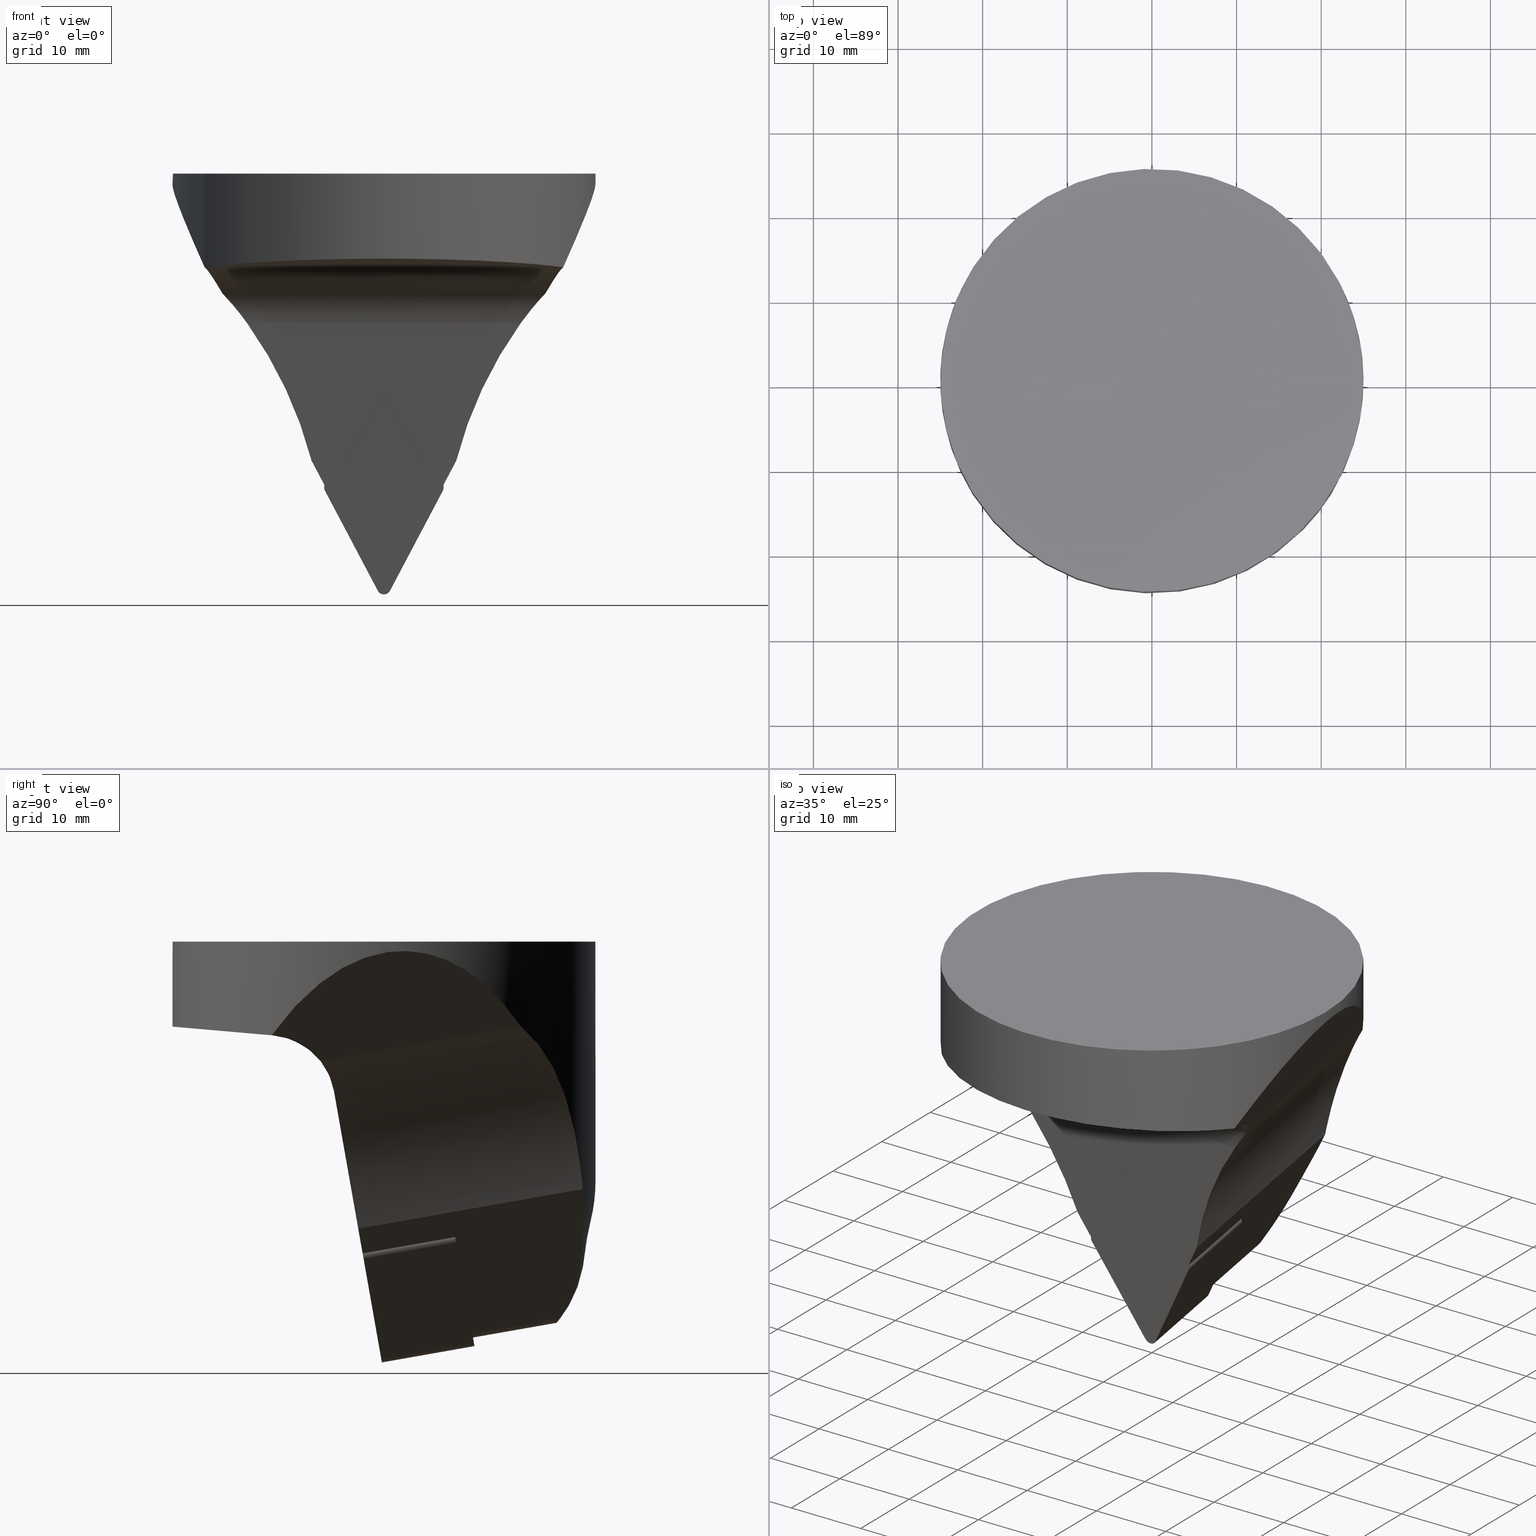
[diagram: canonical four-view strip — front | top / right | iso, engineering-drawing reading convention]
A machine part, canonical four-view strip (front | top / right | iso — engineering-drawing reading convention). The complete STEP part file that produces these views, byte-faithful:
ISO-10303-21;
HEADER;
FILE_DESCRIPTION((''),'1');
FILE_NAME('//Big_tech03/bigt/Translate/11_3D_Field/02_Step_Field/91_\X2\65CB524A30C430FC30EB\X0\/S\X2\30AB30FC30C830EA30C330B8\X0\/S50-DDHNN-00050-15.stp','2012-12-24T06:25:39',(''),(''),'Spatial Interop R18','Kubotek KeyCreator V8.5.1 (14335)',' ');
FILE_SCHEMA(('CONFIG_CONTROL_DESIGN'));
ENDSEC;
DATA;
#1=DESIGN_CONTEXT('',#27,'design');
#2=APPLICATION_PROTOCOL_DEFINITION('INTERNATIONAL STANDARD','config_control_design',1994,#27);
#3=PRODUCT_CATEGORY_RELATIONSHIP('NONE','NONE',#28,#29);
#4=DATE_AND_TIME(#30,#31);
#5=DATE_TIME_ROLE('creation_date');
#6=DATE_TIME_ROLE('classification_date');
#7=PERSON_AND_ORGANIZATION_ROLE('creator');
#8=PERSON_AND_ORGANIZATION_ROLE('design_supplier');
#9=PERSON_AND_ORGANIZATION_ROLE('classification_officer');
#10=PERSON_AND_ORGANIZATION_ROLE('design_owner');
#11=APPROVAL_PERSON_ORGANIZATION(#32,#33,#34);
#12=APPROVAL_DATE_TIME(#4,#33);
#13=CC_DESIGN_APPROVAL(#33,(#35,#36,#37));
#14=CC_DESIGN_DATE_AND_TIME_ASSIGNMENT(#4,#5,(#37));
#15=CC_DESIGN_DATE_AND_TIME_ASSIGNMENT(#4,#6,(#35));
#16=CC_DESIGN_PERSON_AND_ORGANIZATION_ASSIGNMENT(#32,#10,(#38));
#17=CC_DESIGN_PERSON_AND_ORGANIZATION_ASSIGNMENT(#32,#7,(#37));
#18=CC_DESIGN_PERSON_AND_ORGANIZATION_ASSIGNMENT(#32,#7,(#36));
#19=CC_DESIGN_PERSON_AND_ORGANIZATION_ASSIGNMENT(#32,#8,(#36));
#20=CC_DESIGN_SECURITY_CLASSIFICATION(#35,(#36));
#21=CC_DESIGN_PERSON_AND_ORGANIZATION_ASSIGNMENT(#32,#9,(#35));
#22=SHAPE_DEFINITION_REPRESENTATION(#39,#40);
#23= (GEOMETRIC_REPRESENTATION_CONTEXT(3)GLOBAL_UNCERTAINTY_ASSIGNED_CONTEXT((#43))GLOBAL_UNIT_ASSIGNED_CONTEXT((#45,#46,#47))REPRESENTATION_CONTEXT('NONE','WORKSPACE'));
#27=APPLICATION_CONTEXT('CONFIGURATION CONTROLLED 3D DESIGNS OF MECHANICAL PARTS AND ASSEMBLIES');
#28=PRODUCT_CATEGORY('part','NONE');
#29=PRODUCT_RELATED_PRODUCT_CATEGORY('detail',' ',(#38));
#30=CALENDAR_DATE(2012,24,11);
#31=LOCAL_TIME(15,25,39.0,#49);
#32=PERSON_AND_ORGANIZATION(#50,#51);
#33=APPROVAL(#52,'SOLID MODEL');
#34=APPROVAL_ROLE('APPROVED');
#35=SECURITY_CLASSIFICATION('','',#53);
#36=PRODUCT_DEFINITION_FORMATION_WITH_SPECIFIED_SOURCE(' ','NONE',#38,.NOT_KNOWN.);
#37=PRODUCT_DEFINITION('NONE','NONE',#36,#1);
#38=PRODUCT('1','1','PART-1-DESC',(#54));
#39=PRODUCT_DEFINITION_SHAPE('NONE','NONE',#37);
#40=ADVANCED_BREP_SHAPE_REPRESENTATION('1',(#55,#56),#23);
#43=UNCERTAINTY_MEASURE_WITH_UNIT(LENGTH_MEASURE(1.0E-006),#45,'','');
#45= (CONVERSION_BASED_UNIT('MILLIMETRE',#59)LENGTH_UNIT()NAMED_UNIT(#62));
#46= (NAMED_UNIT(#64)PLANE_ANGLE_UNIT()SI_UNIT($,.RADIAN.));
#47= (NAMED_UNIT(#64)SOLID_ANGLE_UNIT()SI_UNIT($,.STERADIAN.));
#49=COORDINATED_UNIVERSAL_TIME_OFFSET(9,0,.AHEAD.);
#50=PERSON('','UNSPECIFIED',$,$,$,$);
#51=ORGANIZATION('UNSPECIFIED','UNSPECIFIED','UNSPECIFIED');
#52=APPROVAL_STATUS('approved');
#53=SECURITY_CLASSIFICATION_LEVEL('unclassified');
#54=MECHANICAL_CONTEXT('',#27,'mechanical');
#55=MANIFOLD_SOLID_BREP('1',#70);
#56=AXIS2_PLACEMENT_3D('',#71,#72,#73);
#59=LENGTH_MEASURE_WITH_UNIT(LENGTH_MEASURE(1.0),#74);
#62=DIMENSIONAL_EXPONENTS(1.0,0.0,0.0,0.0,0.0,0.0,0.0);
#64=DIMENSIONAL_EXPONENTS(0.0,0.0,0.0,0.0,0.0,0.0,0.0);
#70=CLOSED_SHELL('',(#75,#76,#77,#78,#79,#80,#81,#82,#83,#84,#85,#86,#87,#88,#89,#90,#91,#92,#93,#94,#95,#96,#97,#98,#99,#100,#101,#102,#103));
#71=CARTESIAN_POINT('',(0.0,0.0,0.0));
#72=DIRECTION('',(0.0,0.0,1.0));
#73=DIRECTION('',(1.0,0.0,0.0));
#74= (NAMED_UNIT(#62)LENGTH_UNIT()SI_UNIT(.MILLI.,.METRE.));
#75=ADVANCED_FACE('',(#105),#106,.T.);
#76=ADVANCED_FACE('',(#107),#108,.T.);
#77=ADVANCED_FACE('',(#109),#110,.T.);
#78=ADVANCED_FACE('',(#111),#112,.T.);
#79=ADVANCED_FACE('',(#113),#114,.T.);
#80=ADVANCED_FACE('',(#115),#116,.T.);
#81=ADVANCED_FACE('',(#117),#118,.F.);
#82=ADVANCED_FACE('',(#119),#120,.F.);
#83=ADVANCED_FACE('',(#121),#122,.F.);
#84=ADVANCED_FACE('',(#123),#124,.F.);
#85=ADVANCED_FACE('',(#125),#126,.F.);
#86=ADVANCED_FACE('',(#127),#128,.F.);
#87=ADVANCED_FACE('',(#129),#130,.F.);
#88=ADVANCED_FACE('',(#131),#132,.T.);
#89=ADVANCED_FACE('',(#133),#134,.T.);
#90=ADVANCED_FACE('',(#135),#136,.F.);
#91=ADVANCED_FACE('',(#137),#138,.F.);
#92=ADVANCED_FACE('',(#139),#140,.T.);
#93=ADVANCED_FACE('',(#141,#142),#143,.T.);
#94=ADVANCED_FACE('',(#144),#145,.F.);
#95=ADVANCED_FACE('',(#146),#147,.T.);
#96=ADVANCED_FACE('',(#148),#149,.F.);
#97=ADVANCED_FACE('',(#150),#151,.F.);
#98=ADVANCED_FACE('',(#152),#153,.T.);
#99=ADVANCED_FACE('',(#154),#155,.F.);
#100=ADVANCED_FACE('',(#156),#157,.F.);
#101=ADVANCED_FACE('',(#158),#159,.T.);
#102=ADVANCED_FACE('',(#160),#161,.T.);
#103=ADVANCED_FACE('',(#162),#163,.F.);
#105=FACE_OUTER_BOUND('',#164,.T.);
#106=CYLINDRICAL_SURFACE('',#165,0.799999999999142);
#107=FACE_OUTER_BOUND('',#166,.T.);
#108=PLANE('',#167);
#109=FACE_OUTER_BOUND('',#168,.T.);
#110=CYLINDRICAL_SURFACE('',#169,0.8);
#111=FACE_OUTER_BOUND('',#170,.T.);
#112=PLANE('',#171);
#113=FACE_OUTER_BOUND('',#172,.T.);
#114=CYLINDRICAL_SURFACE('',#173,0.8);
#115=FACE_OUTER_BOUND('',#174,.T.);
#116=PLANE('',#175);
#117=FACE_OUTER_BOUND('',#176,.T.);
#118=PLANE('',#177);
#119=FACE_OUTER_BOUND('',#178,.T.);
#120=CYLINDRICAL_SURFACE('',#179,0.799999999999142);
#121=FACE_OUTER_BOUND('',#180,.T.);
#122=PLANE('',#181);
#123=FACE_OUTER_BOUND('',#182,.T.);
#124=CYLINDRICAL_SURFACE('',#183,0.799999998551582);
#125=FACE_OUTER_BOUND('',#184,.T.);
#126=PLANE('',#185);
#127=FACE_OUTER_BOUND('',#186,.T.);
#128=CYLINDRICAL_SURFACE('',#187,0.8);
#129=FACE_OUTER_BOUND('',#188,.T.);
#130=PLANE('',#189);
#131=FACE_OUTER_BOUND('',#190,.T.);
#132=CYLINDRICAL_SURFACE('',#191,1.2);
#133=FACE_OUTER_BOUND('',#192,.T.);
#134=TOROIDAL_SURFACE('',#193,9.72606554933885,13.9999999999999);
#135=FACE_OUTER_BOUND('',#194,.T.);
#136=PLANE('',#195);
#137=FACE_OUTER_BOUND('',#196,.T.);
#138=PLANE('',#197);
#139=FACE_OUTER_BOUND('',#198,.T.);
#140=TOROIDAL_SURFACE('',#199,9.72606554941745,13.9999999999999);
#141=FACE_BOUND('',#200,.T.);
#142=FACE_BOUND('',#201,.T.);
#143=CYLINDRICAL_SURFACE('',#202,25.0);
#144=FACE_OUTER_BOUND('',#203,.T.);
#145=CYLINDRICAL_SURFACE('',#204,8.0);
#146=FACE_OUTER_BOUND('',#205,.T.);
#147=TOROIDAL_SURFACE('',#206,4.99999999998933,19.9999999999995);
#148=FACE_OUTER_BOUND('',#207,.T.);
#149=CYLINDRICAL_SURFACE('',#208,50.0);
#150=FACE_OUTER_BOUND('',#209,.T.);
#151=PLANE('',#210);
#152=FACE_OUTER_BOUND('',#211,.T.);
#153=TOROIDAL_SURFACE('',#212,4.99999999998796,20.0);
#154=FACE_OUTER_BOUND('',#213,.T.);
#155=CYLINDRICAL_SURFACE('',#214,50.0);
#156=FACE_OUTER_BOUND('',#215,.T.);
#157=PLANE('',#216);
#158=FACE_OUTER_BOUND('',#217,.T.);
#159=CONICAL_SURFACE('',#218,23.2367301929155,0.174532924999441);
#160=FACE_OUTER_BOUND('',#219,.T.);
#161=PLANE('',#220);
#162=FACE_OUTER_BOUND('',#221,.T.);
#163=PLANE('',#222);
#164=EDGE_LOOP('',(#223,#224,#225,#226));
#165=AXIS2_PLACEMENT_3D('',#227,#228,#229);
#166=EDGE_LOOP('',(#230,#231,#232,#233,#234,#235,#236,#237));
#167=AXIS2_PLACEMENT_3D('',#238,#239,#240);
#168=EDGE_LOOP('',(#241,#242,#243,#244));
#169=AXIS2_PLACEMENT_3D('',#245,#246,#247);
#170=EDGE_LOOP('',(#248,#249,#250,#251));
#171=AXIS2_PLACEMENT_3D('',#252,#253,#254);
#172=EDGE_LOOP('',(#255,#256,#257,#258));
#173=AXIS2_PLACEMENT_3D('',#259,#260,#261);
#174=EDGE_LOOP('',(#262,#263,#264,#265));
#175=AXIS2_PLACEMENT_3D('',#266,#267,#268);
#176=EDGE_LOOP('',(#269,#270,#271,#272,#273,#274,#275,#276,#277,#278));
#177=AXIS2_PLACEMENT_3D('',#279,#280,#281);
#178=EDGE_LOOP('',(#282,#283,#284,#285));
#179=AXIS2_PLACEMENT_3D('',#286,#287,#288);
#180=EDGE_LOOP('',(#289,#290,#291,#292));
#181=AXIS2_PLACEMENT_3D('',#293,#294,#295);
#182=EDGE_LOOP('',(#296,#297,#298,#299));
#183=AXIS2_PLACEMENT_3D('',#300,#301,#302);
#184=EDGE_LOOP('',(#303,#304,#305,#306));
#185=AXIS2_PLACEMENT_3D('',#307,#308,#309);
#186=EDGE_LOOP('',(#310,#311,#312,#313));
#187=AXIS2_PLACEMENT_3D('',#314,#315,#316);
#188=EDGE_LOOP('',(#317,#318,#319,#320,#321,#322,#323,#324,#325));
#189=AXIS2_PLACEMENT_3D('',#326,#327,#328);
#190=EDGE_LOOP('',(#329,#330,#331,#332,#333));
#191=AXIS2_PLACEMENT_3D('',#334,#335,#336);
#192=EDGE_LOOP('',(#337,#338,#339,#340));
#193=AXIS2_PLACEMENT_3D('',#341,#342,#343);
#194=EDGE_LOOP('',(#344,#345,#346,#347,#348,#349,#350,#351,#352));
#195=AXIS2_PLACEMENT_3D('',#353,#354,#355);
#196=EDGE_LOOP('',(#356,#357,#358,#359,#360,#361,#362,#363,#364,#365));
#197=AXIS2_PLACEMENT_3D('',#366,#367,#368);
#198=EDGE_LOOP('',(#369,#370,#371,#372));
#199=AXIS2_PLACEMENT_3D('',#373,#374,#375);
#200=EDGE_LOOP('',(#376));
#201=EDGE_LOOP('',(#377,#378,#379,#380,#381,#382,#383));
#202=AXIS2_PLACEMENT_3D('',#384,#385,#386);
#203=EDGE_LOOP('',(#387,#388,#389,#390,#391,#392));
#204=AXIS2_PLACEMENT_3D('',#393,#394,#395);
#205=EDGE_LOOP('',(#396,#397,#398,#399,#400));
#206=AXIS2_PLACEMENT_3D('',#401,#402,#403);
#207=EDGE_LOOP('',(#404,#405,#406,#407,#408,#409));
#208=AXIS2_PLACEMENT_3D('',#410,#411,#412);
#209=EDGE_LOOP('',(#413,#414,#415,#416));
#210=AXIS2_PLACEMENT_3D('',#417,#418,#419);
#211=EDGE_LOOP('',(#420,#421,#422,#423,#424));
#212=AXIS2_PLACEMENT_3D('',#425,#426,#427);
#213=EDGE_LOOP('',(#428,#429,#430,#431,#432,#433));
#214=AXIS2_PLACEMENT_3D('',#434,#435,#436);
#215=EDGE_LOOP('',(#437,#438,#439,#440));
#216=AXIS2_PLACEMENT_3D('',#441,#442,#443);
#217=EDGE_LOOP('',(#444,#445,#446,#447,#448,#449));
#218=AXIS2_PLACEMENT_3D('',#450,#451,#452);
#219=EDGE_LOOP('',(#453));
#220=AXIS2_PLACEMENT_3D('',#454,#455,#456);
#221=EDGE_LOOP('',(#457,#458,#459,#460));
#222=AXIS2_PLACEMENT_3D('',#461,#462,#463);
#223=ORIENTED_EDGE('',*,*,#464,.F.);
#224=ORIENTED_EDGE('',*,*,#465,.T.);
#225=ORIENTED_EDGE('',*,*,#466,.T.);
#226=ORIENTED_EDGE('',*,*,#467,.T.);
#227=CARTESIAN_POINT('',(-6.25696980563383,8.47194245402044,-35.1824966051004));
#228=DIRECTION('',(1.08420217248783E-017,0.984807753012208,0.173648177666931));
#229=DIRECTION('',(-0.887007221716578,-0.0801830099104767,0.454740446347512));
#230=ORIENTED_EDGE('',*,*,#468,.F.);
#231=ORIENTED_EDGE('',*,*,#469,.F.);
#232=ORIENTED_EDGE('',*,*,#470,.F.);
#233=ORIENTED_EDGE('',*,*,#471,.F.);
#234=ORIENTED_EDGE('',*,*,#472,.F.);
#235=ORIENTED_EDGE('',*,*,#473,.F.);
#236=ORIENTED_EDGE('',*,*,#474,.F.);
#237=ORIENTED_EDGE('',*,*,#465,.F.);
#238=CARTESIAN_POINT('',(-2.26626051362452E-005,9.55508718525911,-41.325315627389));
#239=DIRECTION('',(9.63750721919001E-017,0.984807753012208,0.173648177666931));
#240=DIRECTION('',(2.13995648294718E-033,-0.173648177666931,0.984807753012208));
#241=ORIENTED_EDGE('',*,*,#475,.F.);
#242=ORIENTED_EDGE('',*,*,#476,.T.);
#243=ORIENTED_EDGE('',*,*,#477,.F.);
#244=ORIENTED_EDGE('',*,*,#471,.T.);
#245=CARTESIAN_POINT('',(6.25696980419981,8.47195944969583,-35.1825929923652));
#246=DIRECTION('',(2.16840434497101E-017,0.984807753012208,0.173648177666931));
#247=DIRECTION('',(0.887007221716535,0.080183009910491,-0.454740446347593));
#248=ORIENTED_EDGE('',*,*,#478,.T.);
#249=ORIENTED_EDGE('',*,*,#479,.F.);
#250=ORIENTED_EDGE('',*,*,#472,.T.);
#251=ORIENTED_EDGE('',*,*,#477,.T.);
#252=CARTESIAN_POINT('',(6.96657558157304,8.53610585762422,-35.5463853494433));
#253=DIRECTION('',(0.887007221716534,0.080183009910491,-0.454740446347594));
#254=DIRECTION('',(-0.456209368079499,0.0,-0.88987246978233));
#255=ORIENTED_EDGE('',*,*,#480,.T.);
#256=ORIENTED_EDGE('',*,*,#481,.F.);
#257=ORIENTED_EDGE('',*,*,#473,.T.);
#258=ORIENTED_EDGE('',*,*,#479,.T.);
#259=CARTESIAN_POINT('',(-9.40080069376711E-005,10.559119940347,-47.0194683376198));
#260=DIRECTION('',(2.16840434497101E-017,0.984807753012208,0.173648177666931));
#261=DIRECTION('',(-0.88701444458565,0.080180600541596,-0.454726782137582));
#262=ORIENTED_EDGE('',*,*,#482,.T.);
#263=ORIENTED_EDGE('',*,*,#466,.F.);
#264=ORIENTED_EDGE('',*,*,#474,.T.);
#265=ORIENTED_EDGE('',*,*,#481,.T.);
#266=CARTESIAN_POINT('',(-0.709705563675459,10.6232644207803,-47.3832497633299));
#267=DIRECTION('',(-0.887014444585653,0.0801806005415949,-0.454726782137576));
#268=DIRECTION('',(-0.45619557102919,0.0,0.889879542956996));
#269=ORIENTED_EDGE('',*,*,#467,.F.);
#270=ORIENTED_EDGE('',*,*,#482,.F.);
#271=ORIENTED_EDGE('',*,*,#480,.F.);
#272=ORIENTED_EDGE('',*,*,#478,.F.);
#273=ORIENTED_EDGE('',*,*,#476,.F.);
#274=ORIENTED_EDGE('',*,*,#483,.F.);
#275=ORIENTED_EDGE('',*,*,#484,.F.);
#276=ORIENTED_EDGE('',*,*,#485,.F.);
#277=ORIENTED_EDGE('',*,*,#486,.F.);
#278=ORIENTED_EDGE('',*,*,#487,.F.);
#279=CARTESIAN_POINT('',(-2.26626051366615E-005,-1.38612695070652,-43.2545468812686));
#280=DIRECTION('',(1.02117280393724E-016,0.984807753012208,0.173648177666931));
#281=DIRECTION('',(-8.36085562892542E-035,-0.173648177666931,0.984807753012208));
#282=ORIENTED_EDGE('',*,*,#487,.T.);
#283=ORIENTED_EDGE('',*,*,#488,.F.);
#284=ORIENTED_EDGE('',*,*,#489,.F.);
#285=ORIENTED_EDGE('',*,*,#490,.F.);
#286=CARTESIAN_POINT('',(-6.25696980563383,-2.56775245724641,-37.1290926767467));
#287=DIRECTION('',(-1.08420217248783E-017,0.984807753012208,0.173648177666931));
#288=DIRECTION('',(-0.887014444585653,0.0801806005415949,-0.454726782137576));
#289=ORIENTED_EDGE('',*,*,#486,.T.);
#290=ORIENTED_EDGE('',*,*,#491,.F.);
#291=ORIENTED_EDGE('',*,*,#492,.F.);
#292=ORIENTED_EDGE('',*,*,#488,.T.);
#293=CARTESIAN_POINT('',(-6.96657558300633,-2.63189886517472,-36.7653003196691));
#294=DIRECTION('',(-0.887007221617867,-0.0801830099434035,0.454740446534249));
#295=DIRECTION('',(0.456209368267969,0.0,0.889872469685708));
#296=ORIENTED_EDGE('',*,*,#485,.T.);
#297=ORIENTED_EDGE('',*,*,#493,.F.);
#298=ORIENTED_EDGE('',*,*,#494,.F.);
#299=ORIENTED_EDGE('',*,*,#491,.T.);
#300=CARTESIAN_POINT('',(9.40082061119755E-005,-4.6549129478979,-25.2922173314905));
#301=DIRECTION('',(-1.08420217641145E-017,0.984807753012208,0.173648177666931));
#302=DIRECTION('',(-0.887007221716489,-0.0801830099105062,0.454740446347679));
#303=ORIENTED_EDGE('',*,*,#484,.T.);
#304=ORIENTED_EDGE('',*,*,#495,.F.);
#305=ORIENTED_EDGE('',*,*,#496,.F.);
#306=ORIENTED_EDGE('',*,*,#493,.T.);
#307=CARTESIAN_POINT('',(0.70970556258987,-4.71905742821504,-24.9284359064391));
#308=DIRECTION('',(0.887014444585658,-0.0801806005415933,0.454726782137567));
#309=DIRECTION('',(0.456195571029181,0.0,-0.889879542957));
#310=ORIENTED_EDGE('',*,*,#483,.T.);
#311=ORIENTED_EDGE('',*,*,#497,.F.);
#312=ORIENTED_EDGE('',*,*,#498,.F.);
#313=ORIENTED_EDGE('',*,*,#495,.T.);
#314=CARTESIAN_POINT('',(6.25696980419981,-2.56773546157102,-37.1291890640115));
#315=DIRECTION('',(-1.0842021724855E-017,0.984807753012208,0.173648177666931));
#316=DIRECTION('',(0.887014444585658,-0.0801806005415934,0.454726782137567));
#317=ORIENTED_EDGE('',*,*,#497,.T.);
#318=ORIENTED_EDGE('',*,*,#475,.T.);
#319=ORIENTED_EDGE('',*,*,#470,.T.);
#320=ORIENTED_EDGE('',*,*,#499,.F.);
#321=ORIENTED_EDGE('',*,*,#500,.F.);
#322=ORIENTED_EDGE('',*,*,#501,.F.);
#323=ORIENTED_EDGE('',*,*,#502,.F.);
#324=ORIENTED_EDGE('',*,*,#503,.T.);
#325=ORIENTED_EDGE('',*,*,#504,.T.);
#326=CARTESIAN_POINT('',(61.7465973300586,-20.4878377410686,66.7618763362882));
#327=DIRECTION('',(-0.887010833178221,-0.0801818052284959,0.454733614256499));
#328=DIRECTION('',(0.456202469567388,-7.12157490565487E-018,0.889876006396743));
#329=ORIENTED_EDGE('',*,*,#469,.T.);
#330=ORIENTED_EDGE('',*,*,#505,.T.);
#331=ORIENTED_EDGE('',*,*,#506,.T.);
#332=ORIENTED_EDGE('',*,*,#507,.T.);
#333=ORIENTED_EDGE('',*,*,#499,.T.);
#334=CARTESIAN_POINT('',(-1.34606188048827E-007,-0.341993452561285,-47.4908841179721));
#335=DIRECTION('',(5.67545298584115E-016,0.984807753012208,0.173648177666931));
#336=DIRECTION('',(-5.20950827154246E-015,0.173648177666931,-0.984807753012208));
#337=ORIENTED_EDGE('',*,*,#506,.F.);
#338=ORIENTED_EDGE('',*,*,#508,.T.);
#339=ORIENTED_EDGE('',*,*,#509,.T.);
#340=ORIENTED_EDGE('',*,*,#510,.T.);
#341=CARTESIAN_POINT('',(-1.63680393693683E-013,8.07920397249973E-012,-36.0000000000126));
#342=DIRECTION('',(-5.21159466390768E-015,1.29791048833431E-012,-1.0));
#343=DIRECTION('',(-0.996584776480849,-0.0825759243764007,-1.01982362428792E-013));
#344=ORIENTED_EDGE('',*,*,#464,.T.);
#345=ORIENTED_EDGE('',*,*,#490,.T.);
#346=ORIENTED_EDGE('',*,*,#511,.T.);
#347=ORIENTED_EDGE('',*,*,#512,.T.);
#348=ORIENTED_EDGE('',*,*,#513,.F.);
#349=ORIENTED_EDGE('',*,*,#514,.F.);
#350=ORIENTED_EDGE('',*,*,#508,.F.);
#351=ORIENTED_EDGE('',*,*,#505,.F.);
#352=ORIENTED_EDGE('',*,*,#468,.T.);
#353=CARTESIAN_POINT('',(11.4685245144693,3.93489996243679,-71.7463519868937));
#354=DIRECTION('',(0.887010833178223,-0.0801818052284961,0.454733614256494));
#355=DIRECTION('',(0.456202469567383,0.0,-0.889876006396746));
#356=ORIENTED_EDGE('',*,*,#498,.T.);
#357=ORIENTED_EDGE('',*,*,#504,.F.);
#358=ORIENTED_EDGE('',*,*,#515,.T.);
#359=ORIENTED_EDGE('',*,*,#516,.F.);
#360=ORIENTED_EDGE('',*,*,#517,.T.);
#361=ORIENTED_EDGE('',*,*,#511,.F.);
#362=ORIENTED_EDGE('',*,*,#489,.T.);
#363=ORIENTED_EDGE('',*,*,#492,.T.);
#364=ORIENTED_EDGE('',*,*,#494,.T.);
#365=ORIENTED_EDGE('',*,*,#496,.T.);
#366=CARTESIAN_POINT('',(-1.34606097362129E-007,-6.96924047961272,-11.6272272680573));
#367=DIRECTION('',(8.32667268468867E-016,0.984807753012208,0.17364817766693));
#368=DIRECTION('',(0.0,-0.17364817766693,0.984807753012208));
#369=ORIENTED_EDGE('',*,*,#507,.F.);
#370=ORIENTED_EDGE('',*,*,#510,.F.);
#371=ORIENTED_EDGE('',*,*,#518,.T.);
#372=ORIENTED_EDGE('',*,*,#500,.T.);
#373=CARTESIAN_POINT('',(-5.21221143135947E-012,-7.03203051344303E-011,-35.9999999999381));
#374=DIRECTION('',(-5.16546344465287E-013,-6.3553091469795E-012,-1.0));
#375=DIRECTION('',(-0.996584776968093,0.0825759184959886,-1.00132666451685E-014));
#376=ORIENTED_EDGE('',*,*,#519,.F.);
#377=ORIENTED_EDGE('',*,*,#520,.T.);
#378=ORIENTED_EDGE('',*,*,#521,.T.);
#379=ORIENTED_EDGE('',*,*,#522,.F.);
#380=ORIENTED_EDGE('',*,*,#523,.F.);
#381=ORIENTED_EDGE('',*,*,#524,.T.);
#382=ORIENTED_EDGE('',*,*,#525,.T.);
#383=ORIENTED_EDGE('',*,*,#526,.T.);
#384=CARTESIAN_POINT('',(-3.55271367880048E-015,-9.99200722162641E-016,-25.0));
#385=DIRECTION('',(-0.0,-0.0,-1.0));
#386=DIRECTION('',(-1.0,0.0,0.0));
#387=ORIENTED_EDGE('',*,*,#527,.T.);
#388=ORIENTED_EDGE('',*,*,#528,.T.);
#389=ORIENTED_EDGE('',*,*,#529,.T.);
#390=ORIENTED_EDGE('',*,*,#530,.T.);
#391=ORIENTED_EDGE('',*,*,#516,.T.);
#392=ORIENTED_EDGE('',*,*,#531,.T.);
#393=CARTESIAN_POINT('',(-1.34606108437416E-007,-13.7817430386128,-19.0617692242502));
#394=DIRECTION('',(1.0,-0.0,-0.0));
#395=DIRECTION('',(0.0,0.67559020761566,0.737277336810124));
#396=ORIENTED_EDGE('',*,*,#532,.F.);
#397=ORIENTED_EDGE('',*,*,#522,.T.);
#398=ORIENTED_EDGE('',*,*,#533,.T.);
#399=ORIENTED_EDGE('',*,*,#502,.T.);
#400=ORIENTED_EDGE('',*,*,#534,.T.);
#401=CARTESIAN_POINT('',(1.69101655788168E-012,1.10035314193624E-011,-28.2502267298266));
#402=DIRECTION('',(-1.0758381104024E-011,-7.5409260396901E-011,1.0));
#403=DIRECTION('',(0.983804316987568,-0.179245825269727,-2.93265333888602E-012));
#404=ORIENTED_EDGE('',*,*,#524,.F.);
#405=ORIENTED_EDGE('',*,*,#535,.F.);
#406=ORIENTED_EDGE('',*,*,#512,.F.);
#407=ORIENTED_EDGE('',*,*,#517,.F.);
#408=ORIENTED_EDGE('',*,*,#530,.F.);
#409=ORIENTED_EDGE('',*,*,#536,.F.);
#410=CARTESIAN_POINT('',(-56.9999999999999,-0.597189712016918,-46.043594211287));
#411=DIRECTION('',(-1.15813234356353E-016,-0.984807753012208,-0.17364817766693));
#412=DIRECTION('',(-2.6894295116405E-015,0.17364817766693,-0.984807753012208));
#413=ORIENTED_EDGE('',*,*,#536,.T.);
#414=ORIENTED_EDGE('',*,*,#529,.F.);
#415=ORIENTED_EDGE('',*,*,#537,.T.);
#416=ORIENTED_EDGE('',*,*,#525,.F.);
#417=CARTESIAN_POINT('',(11.4685245144693,3.93489996243679,-71.7463519868937));
#418=DIRECTION('',(0.887010833178223,-0.0801818052284961,0.454733614256494));
#419=DIRECTION('',(0.456202469567383,0.0,-0.889876006396746));
#420=ORIENTED_EDGE('',*,*,#532,.T.);
#421=ORIENTED_EDGE('',*,*,#538,.T.);
#422=ORIENTED_EDGE('',*,*,#513,.T.);
#423=ORIENTED_EDGE('',*,*,#535,.T.);
#424=ORIENTED_EDGE('',*,*,#523,.T.);
#425=CARTESIAN_POINT('',(-1.97896442789485E-012,1.18511866986637E-011,-28.2502267297702));
#426=DIRECTION('',(1.16276163018774E-011,-6.38232900043299E-011,1.0));
#427=DIRECTION('',(0.98380431698758,0.17924582526966,7.59174188747074E-016));
#428=ORIENTED_EDGE('',*,*,#533,.F.);
#429=ORIENTED_EDGE('',*,*,#521,.F.);
#430=ORIENTED_EDGE('',*,*,#539,.F.);
#431=ORIENTED_EDGE('',*,*,#531,.F.);
#432=ORIENTED_EDGE('',*,*,#515,.F.);
#433=ORIENTED_EDGE('',*,*,#503,.F.);
#434=CARTESIAN_POINT('',(57.0,-0.597189712016932,-46.0435942112873));
#435=DIRECTION('',(-1.15813234356353E-016,-0.984807753012208,-0.17364817766693));
#436=DIRECTION('',(-2.6894295116405E-015,0.17364817766693,-0.984807753012208));
#437=ORIENTED_EDGE('',*,*,#539,.T.);
#438=ORIENTED_EDGE('',*,*,#520,.F.);
#439=ORIENTED_EDGE('',*,*,#540,.T.);
#440=ORIENTED_EDGE('',*,*,#527,.F.);
#441=CARTESIAN_POINT('',(61.7465973300586,-20.4878377410686,66.7618763362882));
#442=DIRECTION('',(-0.887010833178221,-0.0801818052284959,0.454733614256499));
#443=DIRECTION('',(0.456202469567388,-7.12157490565487E-018,0.889876006396743));
#444=ORIENTED_EDGE('',*,*,#501,.T.);
#445=ORIENTED_EDGE('',*,*,#518,.F.);
#446=ORIENTED_EDGE('',*,*,#509,.F.);
#447=ORIENTED_EDGE('',*,*,#514,.T.);
#448=ORIENTED_EDGE('',*,*,#538,.F.);
#449=ORIENTED_EDGE('',*,*,#534,.F.);
#450=CARTESIAN_POINT('',(-6.2172489379009E-015,-9.99200722162641E-016,-40.000000000001));
#451=DIRECTION('',(-0.0,-0.0,1.0));
#452=DIRECTION('',(1.0,0.0,0.0));
#453=ORIENTED_EDGE('',*,*,#519,.T.);
#454=CARTESIAN_POINT('',(-12.5,8.88178419700125E-016,7.105427357601E-015));
#455=DIRECTION('',(0.0,0.0,1.0));
#456=DIRECTION('',(1.0,0.0,0.0));
#457=ORIENTED_EDGE('',*,*,#526,.F.);
#458=ORIENTED_EDGE('',*,*,#537,.F.);
#459=ORIENTED_EDGE('',*,*,#528,.F.);
#460=ORIENTED_EDGE('',*,*,#540,.F.);
#461=CARTESIAN_POINT('',(-1.34606073223467E-007,-76.9167196008659,-5.50761580273133));
#462=DIRECTION('',(2.05998412772246E-015,0.0871557427476581,0.996194698091746));
#463=DIRECTION('',(1.0,0.0,-2.06785293243223E-015));
#464=EDGE_CURVE('',#541,#542,#543,.T.);
#465=EDGE_CURVE('',#541,#544,#545,.T.);
#466=EDGE_CURVE('',#544,#546,#547,.T.);
#467=EDGE_CURVE('',#546,#542,#548,.T.);
#468=EDGE_CURVE('',#549,#541,#550,.T.);
#469=EDGE_CURVE('',#551,#549,#552,.T.);
#470=EDGE_CURVE('',#553,#551,#554,.T.);
#471=EDGE_CURVE('',#555,#553,#556,.T.);
#472=EDGE_CURVE('',#557,#555,#558,.T.);
#473=EDGE_CURVE('',#559,#557,#560,.T.);
#474=EDGE_CURVE('',#544,#559,#561,.T.);
#475=EDGE_CURVE('',#562,#553,#563,.T.);
#476=EDGE_CURVE('',#562,#564,#565,.T.);
#477=EDGE_CURVE('',#555,#564,#566,.T.);
#478=EDGE_CURVE('',#564,#567,#568,.T.);
#479=EDGE_CURVE('',#557,#567,#569,.T.);
#480=EDGE_CURVE('',#567,#570,#571,.T.);
#481=EDGE_CURVE('',#559,#570,#572,.T.);
#482=EDGE_CURVE('',#570,#546,#573,.T.);
#483=EDGE_CURVE('',#574,#562,#575,.T.);
#484=EDGE_CURVE('',#576,#574,#577,.T.);
#485=EDGE_CURVE('',#578,#576,#579,.T.);
#486=EDGE_CURVE('',#580,#578,#581,.T.);
#487=EDGE_CURVE('',#542,#580,#582,.T.);
#488=EDGE_CURVE('',#583,#580,#584,.T.);
#489=EDGE_CURVE('',#585,#583,#586,.T.);
#490=EDGE_CURVE('',#542,#585,#587,.T.);
#491=EDGE_CURVE('',#588,#578,#589,.T.);
#492=EDGE_CURVE('',#583,#588,#590,.T.);
#493=EDGE_CURVE('',#591,#576,#592,.T.);
#494=EDGE_CURVE('',#588,#591,#593,.T.);
#495=EDGE_CURVE('',#594,#574,#595,.T.);
#496=EDGE_CURVE('',#591,#594,#596,.T.);
#497=EDGE_CURVE('',#597,#562,#598,.T.);
#498=EDGE_CURVE('',#594,#597,#599,.T.);
#499=EDGE_CURVE('',#600,#551,#601,.T.);
#500=EDGE_CURVE('',#602,#600,#603,.T.);
#501=EDGE_CURVE('',#604,#602,#605,.T.);
#502=EDGE_CURVE('',#606,#604,#607,.T.);
#503=EDGE_CURVE('',#606,#608,#609,.T.);
#504=EDGE_CURVE('',#608,#597,#610,.T.);
#505=EDGE_CURVE('',#549,#611,#612,.T.);
#506=EDGE_CURVE('',#611,#613,#614,.T.);
#507=EDGE_CURVE('',#613,#600,#615,.T.);
#508=EDGE_CURVE('',#611,#616,#617,.T.);
#509=EDGE_CURVE('',#616,#618,#619,.T.);
#510=EDGE_CURVE('',#618,#613,#620,.T.);
#511=EDGE_CURVE('',#585,#621,#622,.T.);
#512=EDGE_CURVE('',#621,#623,#624,.T.);
#513=EDGE_CURVE('',#625,#623,#626,.T.);
#514=EDGE_CURVE('',#616,#625,#627,.T.);
#515=EDGE_CURVE('',#608,#628,#629,.T.);
#516=EDGE_CURVE('',#630,#628,#631,.T.);
#517=EDGE_CURVE('',#630,#621,#632,.T.);
#518=EDGE_CURVE('',#618,#602,#633,.T.);
#519=EDGE_CURVE('',#634,#634,#635,.T.);
#520=EDGE_CURVE('',#636,#637,#638,.T.);
#521=EDGE_CURVE('',#637,#639,#640,.T.);
#522=EDGE_CURVE('',#641,#639,#642,.T.);
#523=EDGE_CURVE('',#643,#641,#644,.T.);
#524=EDGE_CURVE('',#643,#645,#646,.T.);
#525=EDGE_CURVE('',#645,#647,#648,.T.);
#526=EDGE_CURVE('',#647,#636,#649,.T.);
#527=EDGE_CURVE('',#650,#651,#652,.T.);
#528=EDGE_CURVE('',#651,#653,#654,.T.);
#529=EDGE_CURVE('',#653,#655,#656,.T.);
#530=EDGE_CURVE('',#655,#630,#657,.T.);
#531=EDGE_CURVE('',#628,#650,#658,.T.);
#532=EDGE_CURVE('',#641,#659,#660,.T.);
#533=EDGE_CURVE('',#639,#606,#661,.T.);
#534=EDGE_CURVE('',#604,#659,#662,.T.);
#535=EDGE_CURVE('',#623,#643,#663,.T.);
#536=EDGE_CURVE('',#645,#655,#664,.T.);
#537=EDGE_CURVE('',#653,#647,#665,.T.);
#538=EDGE_CURVE('',#659,#625,#666,.T.);
#539=EDGE_CURVE('',#650,#637,#667,.T.);
#540=EDGE_CURVE('',#636,#651,#668,.T.);
#541=VERTEX_POINT('',#669);
#542=VERTEX_POINT('',#670);
#543=LINE('',#671,#672);
#544=VERTEX_POINT('',#673);
#545=CIRCLE('',#674,0.799999999999142);
#546=VERTEX_POINT('',#675);
#547=LINE('',#676,#677);
#548=CIRCLE('',#678,0.799999999999142);
#549=VERTEX_POINT('',#679);
#550=LINE('',#680,#681);
#551=VERTEX_POINT('',#682);
#552=CIRCLE('',#683,1.2);
#553=VERTEX_POINT('',#684);
#554=LINE('',#685,#686);
#555=VERTEX_POINT('',#687);
#556=CIRCLE('',#688,0.8);
#557=VERTEX_POINT('',#689);
#558=LINE('',#690,#691);
#559=VERTEX_POINT('',#692);
#560=CIRCLE('',#693,0.8);
#561=LINE('',#694,#695);
#562=VERTEX_POINT('',#696);
#563=LINE('',#697,#698);
#564=VERTEX_POINT('',#699);
#565=CIRCLE('',#700,0.8);
#566=LINE('',#701,#702);
#567=VERTEX_POINT('',#703);
#568=LINE('',#704,#705);
#569=LINE('',#706,#707);
#570=VERTEX_POINT('',#708);
#571=CIRCLE('',#709,0.8);
#572=LINE('',#710,#711);
#573=LINE('',#712,#713);
#574=VERTEX_POINT('',#714);
#575=CIRCLE('',#715,0.8);
#576=VERTEX_POINT('',#716);
#577=LINE('',#717,#718);
#578=VERTEX_POINT('',#719);
#579=CIRCLE('',#720,0.799999998551582);
#580=VERTEX_POINT('',#721);
#581=LINE('',#722,#723);
#582=CIRCLE('',#724,0.799999999999142);
#583=VERTEX_POINT('',#725);
#584=LINE('',#726,#727);
#585=VERTEX_POINT('',#728);
#586=CIRCLE('',#729,0.799999999999142);
#587=LINE('',#730,#731);
#588=VERTEX_POINT('',#732);
#589=LINE('',#733,#734);
#590=LINE('',#735,#736);
#591=VERTEX_POINT('',#737);
#592=LINE('',#738,#739);
#593=CIRCLE('',#740,0.799999998551582);
#594=VERTEX_POINT('',#741);
#595=LINE('',#742,#743);
#596=LINE('',#744,#745);
#597=VERTEX_POINT('',#746);
#598=LINE('',#747,#748);
#599=CIRCLE('',#749,0.8);
#600=VERTEX_POINT('',#750);
#601=LINE('',#751,#752);
#602=VERTEX_POINT('',#753);
#603=B_SPLINE_CURVE_WITH_KNOTS('',3,(#754,#755,#756,#757,#758,#759,#760,#761,#762,#763,#764,#765,#766,#767,#768,#769),.UNSPECIFIED.,.F.,.F.,(4,2,2,2,2,2,2,4),(90.3116976182898,91.4581555022152,93.011600596802,94.5650456913888,96.080094891027,97.5951440906653,99.1101932903036,100.198459952914),.UNSPECIFIED.);
#604=VERTEX_POINT('',#770);
#605=ELLIPSE('',#771,53.5861056311116,22.8681854499295);
#606=VERTEX_POINT('',#772);
#607=CIRCLE('',#773,19.0761648064023);
#608=VERTEX_POINT('',#774);
#609=LINE('',#775,#776);
#610=LINE('',#777,#778);
#611=VERTEX_POINT('',#779);
#612=LINE('',#780,#781);
#613=VERTEX_POINT('',#782);
#614=B_SPLINE_CURVE_WITH_KNOTS('',3,(#783,#784,#785,#786,#787,#788,#789,#790,#791,#792,#793,#794,#795,#796,#797,#798,#799,#800,#801,#802,#803,#804,#805,#806,#807,#808,#809,#810,#811,#812,#813,#814,#815,#816,#817,#818),.UNSPECIFIED.,.T.,.F.,(4,2,2,2,2,2,2,2,2,2,2,2,2,2,2,2,2,4),(-8.98724898797629,-8.49737090056228,-7.73315367544591,-6.93026136478665,-6.26338078505897,-5.83559258861763,-5.48131340033367,-5.11917758558877,-4.67150031129554,-4.06470733709726,-3.29736068633149,-2.5702957468324,-2.00541070099709,-1.56413144078463,-1.19034305116691,-0.829092041719121,-0.464019317008662,-0.0),.UNSPECIFIED.);
#615=B_SPLINE_CURVE_WITH_KNOTS('',3,(#819,#820,#821,#822,#823,#824,#825,#826,#827,#828),.UNSPECIFIED.,.F.,.F.,(4,2,2,2,4),(1.41246544226753,1.6280405193388,2.04375517472364,2.61484106208633,2.98135557013499),.UNSPECIFIED.);
#616=VERTEX_POINT('',#829);
#617=B_SPLINE_CURVE_WITH_KNOTS('',3,(#830,#831,#832,#833,#834,#835,#836,#837,#838,#839,#840,#841,#842,#843,#844,#845),.UNSPECIFIED.,.F.,.F.,(4,2,2,2,2,2,2,4),(19.1364935430514,20.2247602498562,21.73980943118,23.2548586125038,24.7699077938275,26.3233528708646,27.8767979479017,29.0232558619743),.UNSPECIFIED.);
#618=VERTEX_POINT('',#846);
#619=CIRCLE('',#847,23.5133740915204);
#620=CIRCLE('',#848,14.0);
#621=VERTEX_POINT('',#849);
#622=LINE('',#850,#851);
#623=VERTEX_POINT('',#852);
#624=LINE('',#853,#854);
#625=VERTEX_POINT('',#855);
#626=CIRCLE('',#856,19.0805522116673);
#627=ELLIPSE('',#857,53.5861053999137,22.8681853512644);
#628=VERTEX_POINT('',#858);
#629=CIRCLE('',#859,50.0);
#630=VERTEX_POINT('',#860);
#631=LINE('',#861,#862);
#632=CIRCLE('',#863,50.0);
#633=CIRCLE('',#864,23.5133740915204);
#634=VERTEX_POINT('',#865);
#635=CIRCLE('',#866,25.0);
#636=VERTEX_POINT('',#867);
#637=VERTEX_POINT('',#868);
#638=ELLIPSE('',#869,54.9772420956293,25.0);
#639=VERTEX_POINT('',#870);
#640=B_SPLINE_CURVE_WITH_KNOTS('',3,(#871,#872,#873,#874,#875,#876,#877,#878,#879,#880,#881,#882,#883,#884,#885,#886,#887,#888),.UNSPECIFIED.,.F.,.F.,(4,2,2,2,2,2,2,2,4),(72.0968360991804,72.8097293091166,75.331385709712,77.8530421103074,80.3746985109028,82.8963549114983,85.8652275959176,88.834100280337,93.7295258768041),.UNSPECIFIED.);
#641=VERTEX_POINT('',#889);
#642=CIRCLE('',#890,25.0);
#643=VERTEX_POINT('',#891);
#644=CIRCLE('',#892,25.0);
#645=VERTEX_POINT('',#893);
#646=B_SPLINE_CURVE_WITH_KNOTS('',3,(#894,#895,#896,#897,#898,#899,#900,#901,#902,#903,#904,#905,#906,#907,#908,#909,#910,#911),.UNSPECIFIED.,.F.,.F.,(4,2,2,2,2,2,2,2,4),(91.4089728244228,96.343237510082,99.3188309405134,102.294424370945,104.809830035042,107.325235699139,109.840641363237,112.356047027334,113.041293061763),.UNSPECIFIED.);
#647=VERTEX_POINT('',#912);
#648=ELLIPSE('',#913,54.9772420956297,25.0);
#649=ELLIPSE('',#914,25.0954959385837,25.0);
#650=VERTEX_POINT('',#915);
#651=VERTEX_POINT('',#916);
#652=ELLIPSE('',#917,9.01905557493074,8.0);
#653=VERTEX_POINT('',#918);
#654=LINE('',#919,#920);
#655=VERTEX_POINT('',#921);
#656=ELLIPSE('',#922,9.01905557493074,8.0);
#657=B_SPLINE_CURVE_WITH_KNOTS('',3,(#923,#924,#925,#926,#927,#928,#929,#930),.UNSPECIFIED.,.F.,.F.,(4,2,2,4),(9.44391554565034,10.084029051479,12.0765218287707,14.0690146060623),.UNSPECIFIED.);
#658=B_SPLINE_CURVE_WITH_KNOTS('',3,(#931,#932,#933,#934,#935,#936,#937,#938),.UNSPECIFIED.,.F.,.F.,(4,2,2,4),(40.2005737103557,42.1930664876474,44.185559264939,44.8256717155463),.UNSPECIFIED.);
#659=VERTEX_POINT('',#939);
#660=CIRCLE('',#940,20.0);
#661=CIRCLE('',#941,15.451015167547);
#662=CIRCLE('',#942,24.696155060248);
#663=CIRCLE('',#943,15.4516804356779);
#664=LINE('',#944,#945);
#665=LINE('',#946,#947);
#666=CIRCLE('',#948,24.696155060248);
#667=LINE('',#949,#950);
#668=LINE('',#951,#952);
#669=CARTESIAN_POINT('',(-7.00865346626792,8.42439592315647,-34.9128468290257));
#670=CARTESIAN_POINT('',(-7.00865346626792,-2.51681821280916,-36.8420780829053));
#671=CARTESIAN_POINT('',(-7.00865346626793,-2.61529898811039,-36.859442900672));
#672=VECTOR('',#953,10.0);
#673=CARTESIAN_POINT('',(-6.96658136130159,8.53608693445365,-35.5462780308101));
#674=AXIS2_PLACEMENT_3D('',#954,#955,#956);
#675=CARTESIAN_POINT('',(-6.96658136130159,-2.40512720151199,-37.4755092846897));
#676=CARTESIAN_POINT('',(-6.96658136130159,8.53608693445365,-35.5462780308101));
#677=VECTOR('',#957,10.0);
#678=AXIS2_PLACEMENT_3D('',#958,#959,#960);
#679=CARTESIAN_POINT('',(-1.06441313442004,10.4072461633813,-46.1581493474374));
#680=CARTESIAN_POINT('',(3.03318220773321,11.7741017168153,-53.9099723976712));
#681=VECTOR('',#961,10.0);
#682=CARTESIAN_POINT('',(1.06441286520768,10.4072461633813,-46.1581493474374));
#683=AXIS2_PLACEMENT_3D('',#962,#963,#964);
#684=CARTESIAN_POINT('',(7.008632378248,8.42440286779119,-34.9128862140062));
#685=CARTESIAN_POINT('',(33.5743786085404,-0.437267144482924,15.3441418180552));
#686=VECTOR('',#965,10.0);
#687=CARTESIAN_POINT('',(6.96657558157304,8.53610585762422,-35.5463853494433));
#688=AXIS2_PLACEMENT_3D('',#966,#967,#968);
#689=CARTESIAN_POINT('',(0.709511769366255,10.6232663482755,-47.383260694698));
#690=CARTESIAN_POINT('',(0.709511769366255,10.6232663482754,-47.383260694698));
#691=VECTOR('',#969,10.0);
#692=CARTESIAN_POINT('',(-0.709705563675459,10.6232644207803,-47.3832497633299));
#693=AXIS2_PLACEMENT_3D('',#970,#971,#972);
#694=CARTESIAN_POINT('',(-6.96658136130159,8.53608693445365,-35.5462780308101));
#695=VECTOR('',#973,10.0);
#696=CARTESIAN_POINT('',(7.008632378248,-2.51681126817445,-36.8421174678858));
#697=CARTESIAN_POINT('',(7.00863237824801,-2.61529204347568,-36.8594822856525));
#698=VECTOR('',#974,10.0);
#699=CARTESIAN_POINT('',(6.96657558157304,-2.40510827834141,-37.4756166033229));
#700=AXIS2_PLACEMENT_3D('',#975,#976,#977);
#701=CARTESIAN_POINT('',(6.96657558157304,8.53610585762422,-35.5463853494433));
#702=VECTOR('',#978,10.0);
#703=CARTESIAN_POINT('',(0.709511769366254,-0.317947787690183,-49.3124919485776));
#704=CARTESIAN_POINT('',(0.709511769366254,-0.317947787690183,-49.3124919485776));
#705=VECTOR('',#979,10.0);
#706=CARTESIAN_POINT('',(0.709511769366255,10.6232663482755,-47.383260694698));
#707=VECTOR('',#980,10.0);
#708=CARTESIAN_POINT('',(-0.709705563675459,-0.31794971518531,-49.3124810172095));
#709=AXIS2_PLACEMENT_3D('',#981,#982,#983);
#710=CARTESIAN_POINT('',(-0.709705563675459,10.6232644207803,-47.3832497633299));
#711=VECTOR('',#984,10.0);
#712=CARTESIAN_POINT('',(-6.96658136130159,-2.40512720151198,-37.4755092846897));
#713=VECTOR('',#985,10.0);
#714=CARTESIAN_POINT('',(6.96658135986833,-2.53339916670308,-36.7480428205348));
#715=AXIS2_PLACEMENT_3D('',#986,#987,#988);
#716=CARTESIAN_POINT('',(0.70970556258987,-4.62057665291382,-24.9110710886724));
#717=CARTESIAN_POINT('',(4.44847920648707,-3.37339124786317,-31.9842110020287));
#718=VECTOR('',#989,10.0);
#719=CARTESIAN_POINT('',(-0.709511767882323,-4.62057858040895,-24.9110601573043));
#720=AXIS2_PLACEMENT_3D('',#990,#991,#992);
#721=CARTESIAN_POINT('',(-6.96657558300633,-2.5334180898735,-36.7479355019024));
#722=CARTESIAN_POINT('',(-7.57692409835007,-2.3298249438993,-37.9025696092646));
#723=VECTOR('',#993,10.0);
#724=AXIS2_PLACEMENT_3D('',#994,#995,#996);
#725=CARTESIAN_POINT('',(-6.96657558300633,-2.53958995282954,-36.7490237678628));
#726=CARTESIAN_POINT('',(-6.96657558300633,-2.63189886517472,-36.7653003196691));
#727=VECTOR('',#997,10.0);
#728=CARTESIAN_POINT('',(-7.00865346626794,-2.52299007576519,-36.8431663488657));
#729=AXIS2_PLACEMENT_3D('',#998,#999,#1000);
#730=CARTESIAN_POINT('',(-7.00865346626793,-2.61529898811039,-36.859442900672));
#731=VECTOR('',#1001,10.0);
#732=CARTESIAN_POINT('',(-0.709511767882323,-4.62675044336498,-24.9121484232647));
#733=CARTESIAN_POINT('',(-0.709511767882323,-4.71905935571017,-24.928424975071));
#734=VECTOR('',#1002,10.0);
#735=CARTESIAN_POINT('',(-0.999810917607259,-4.52991574043653,-25.461325313491));
#736=VECTOR('',#1003,10.0);
#737=CARTESIAN_POINT('',(0.70970556258987,-4.62674851586986,-24.9121593546328));
#738=CARTESIAN_POINT('',(0.70970556258987,-4.71905742821504,-24.9284359064391));
#739=VECTOR('',#1004,10.0);
#740=AXIS2_PLACEMENT_3D('',#1005,#1006,#1007);
#741=CARTESIAN_POINT('',(6.96658135986833,-2.53957102965912,-36.7491310864952));
#742=CARTESIAN_POINT('',(6.96658135986833,-2.6318799420043,-36.7654076383015));
#743=VECTOR('',#1008,10.0);
#744=CARTESIAN_POINT('',(-2.12848509315878,-5.57351617279361,-19.5427731545191));
#745=VECTOR('',#1009,10.0);
#746=CARTESIAN_POINT('',(7.00863237824803,-2.52298313113049,-36.8432057338463));
#747=CARTESIAN_POINT('',(7.00863237824801,-2.61529204347568,-36.8594822856525));
#748=VECTOR('',#1010,10.0);
#749=AXIS2_PLACEMENT_3D('',#1011,#1012,#1013);
#750=CARTESIAN_POINT('',(1.06441286523763,20.9775674511864,-44.2943165095819));
#751=CARTESIAN_POINT('',(1.06441286520769,20.9775674511964,-44.2943165096385));
#752=VECTOR('',#1014,21.8496526057203);
#753=CARTESIAN_POINT('',(3.87001466866381,23.1927089325959,-38.4310744873298));
#754=CARTESIAN_POINT('',(3.87001466866381,23.1927089325959,-38.4310744873298));
#755=CARTESIAN_POINT('',(3.68560759632748,23.1580852856687,-38.7968870249915));
#756=CARTESIAN_POINT('',(3.50117375534356,23.1055266422634,-39.1659142017934));
#757=CARTESIAN_POINT('',(3.0733465022211,22.939599500076,-40.0296984784137));
#758=CARTESIAN_POINT('',(2.83214589323107,22.8109893302692,-40.5228657783413));
#759=CARTESIAN_POINT('',(2.37207689581152,22.4972114555315,-41.4756114025375));
#760=CARTESIAN_POINT('',(2.15320742462498,22.3120489613379,-41.9351909200561));
#761=CARTESIAN_POINT('',(1.75293705610723,21.9109158132294,-42.7866954512549));
#762=CARTESIAN_POINT('',(1.55329382526522,21.678343219725,-43.2171316292389));
#763=CARTESIAN_POINT('',(1.16477284420786,21.1470355285277,-44.0686708970364));
#764=CARTESIAN_POINT('',(0.975900992535475,20.8482826905551,-44.4897656091454));
#765=CARTESIAN_POINT('',(0.620557238430314,20.196974275279,-45.2977482002094));
#766=CARTESIAN_POINT('',(0.453978075327955,19.8442111758605,-45.6848818953305));
#767=CARTESIAN_POINT('',(0.19364663389831,19.209812498928,-46.3045502705764));
#768=CARTESIAN_POINT('',(0.0925509195765025,18.9362132409108,-46.5499921572309));
#769=CARTESIAN_POINT('',(-1.34606170621853E-007,18.6595071426835,-46.7793145096728));
#770=CARTESIAN_POINT('',(7.27193804052132,23.6012497951832,-31.7231902827742));
#771=AXIS2_PLACEMENT_3D('',#1015,#1016,#1017);
#772=CARTESIAN_POINT('',(8.55146388740701,23.4652854800811,-29.2513003937335));
#773=AXIS2_PLACEMENT_3D('',#1018,#1019,#1020);
#774=CARTESIAN_POINT('',(8.55146388740704,-3.03763322227365,-33.9244800284815));
#775=CARTESIAN_POINT('',(8.55146388740701,23.4652854800811,-29.2513003937335));
#776=VECTOR('',#1021,26.9117689430154);
#777=CARTESIAN_POINT('',(8.55146388740704,-3.03763322227365,-33.9244800284815));
#778=VECTOR('',#1022,16.2145609268746);
#779=CARTESIAN_POINT('',(-1.06441313444998,20.9775674354882,-44.2943165123499));
#780=CARTESIAN_POINT('',(-1.06441313442005,-0.540139835540372,-48.0884688672773));
#781=VECTOR('',#1023,21.84965258978);
#782=CARTESIAN_POINT('',(-5.63092109068819E-015,20.4070475207796,-45.0507803048096));
#783=CARTESIAN_POINT('',(-0.788786349318676,22.0451434771285,-42.6251451106536));
#784=CARTESIAN_POINT('',(-0.896675985424806,21.9841370829219,-42.7314585660107));
#785=CARTESIAN_POINT('',(-0.981969711282784,21.9125820361778,-42.8539853819805));
#786=CARTESIAN_POINT('',(-1.14581457717558,21.71409898922,-43.1848512149227));
#787=CARTESIAN_POINT('',(-1.19765890023648,21.5740509427946,-43.4102349553496));
#788=CARTESIAN_POINT('',(-1.20230119118272,21.2678951995303,-43.8793069956543));
#789=CARTESIAN_POINT('',(-1.14988558197058,21.103777704123,-44.1185092729783));
#790=CARTESIAN_POINT('',(-0.960896298468857,20.8227059272269,-44.5102629107405));
#791=CARTESIAN_POINT('',(-0.843829719067111,20.7082562534121,-44.6629515099491));
#792=CARTESIAN_POINT('',(-0.615272872808411,20.5592296797214,-44.8575726919578));
#793=CARTESIAN_POINT('',(-0.512674392097089,20.5080953612775,-44.9230173104878));
#794=CARTESIAN_POINT('',(-0.303602724543643,20.4397466694031,-45.0097714338895));
#795=CARTESIAN_POINT('',(-0.202663322442909,20.4188616408922,-45.0359593447361));
#796=CARTESIAN_POINT('',(0.00990500354340069,20.4025364840373,-45.0564418009254));
#797=CARTESIAN_POINT('',(0.116404150831827,20.4080803062799,-45.0495247959022));
#798=CARTESIAN_POINT('',(0.34712753004393,20.4483798391864,-44.9988127955897));
#799=CARTESIAN_POINT('',(0.463271867782341,20.4885062121096,-44.948156674497));
#800=CARTESIAN_POINT('',(0.705213475977092,20.6069121987431,-44.7958697012856));
#801=CARTESIAN_POINT('',(0.827372535516298,20.6973189422859,-44.6778475863333));
#802=CARTESIAN_POINT('',(1.05244917264378,20.9333168836423,-44.3583803865329));
#803=CARTESIAN_POINT('',(1.13927850940378,21.0845178124955,-44.1462939831098));
#804=CARTESIAN_POINT('',(1.21415729557046,21.3839753583814,-43.7043713693967));
#805=CARTESIAN_POINT('',(1.20643860776838,21.529345444788,-43.4799388492447));
#806=CARTESIAN_POINT('',(1.10733010182708,21.7667784588225,-43.0980328253134));
#807=CARTESIAN_POINT('',(1.03451198654981,21.864524377771,-42.935243693705));
#808=CARTESIAN_POINT('',(0.847723935712004,22.0162720044977,-42.6761091934214));
#809=CARTESIAN_POINT('',(0.74642455652383,22.0749520577091,-42.5734476900672));
#810=CARTESIAN_POINT('',(0.524870415835589,22.1612771015499,-42.4205214943922));
#811=CARTESIAN_POINT('',(0.411607517962117,22.1916088636564,-42.3659181373117));
#812=CARTESIAN_POINT('',(0.171722539592595,22.2287837388717,-42.29878310422));
#813=CARTESIAN_POINT('',(0.0495534175392058,22.2357814033731,-42.2860241316393));
#814=CARTESIAN_POINT('',(-0.195875389271508,22.2265691476876,-42.3027359583768));
#815=CARTESIAN_POINT('',(-0.314393310034758,22.2103043719079,-42.3322889284284));
#816=CARTESIAN_POINT('',(-0.564615185125548,22.150948647603,-42.4388688141937));
#817=CARTESIAN_POINT('',(-0.686591790009945,22.1029295796307,-42.5244435316056));
#818=CARTESIAN_POINT('',(-0.788786349318676,22.0451434771285,-42.6251451106536));
#819=CARTESIAN_POINT('',(-3.23012472364947E-010,20.4070505504778,-45.0507866447389));
#820=CARTESIAN_POINT('',(0.0668793552641246,20.4070522350188,-45.0507890925765));
#821=CARTESIAN_POINT('',(0.133021819857657,20.41232065653,-45.0441783332218));
#822=CARTESIAN_POINT('',(0.322853843054816,20.4421232632581,-45.0067015543858));
#823=CARTESIAN_POINT('',(0.436765630484336,20.4788970026942,-44.9603389672775));
#824=CARTESIAN_POINT('',(0.676944859935115,20.5894341125501,-44.818539079638));
#825=CARTESIAN_POINT('',(0.799163155309672,20.6751675278229,-44.7070203495969));
#826=CARTESIAN_POINT('',(0.964475442515884,20.8377693730606,-44.4880817018521));
#827=CARTESIAN_POINT('',(1.01964216965454,20.9062764157968,-44.3942174944476));
#828=CARTESIAN_POINT('',(1.06441286526758,20.9775674511764,-44.2943165095252));
#829=CARTESIAN_POINT('',(-3.87001494199902,23.1927088869862,-38.4310744873298));
#830=CARTESIAN_POINT('',(-1.34606170621853E-007,18.6595071426835,-46.7793145096728));
#831=CARTESIAN_POINT('',(-0.0925511926552627,18.9362132507743,-46.5499921479498));
#832=CARTESIAN_POINT('',(-0.193646911637976,19.2098125186038,-46.3045502504735));
#833=CARTESIAN_POINT('',(-0.453978357856496,19.8442111976254,-45.684881865518));
#834=CARTESIAN_POINT('',(-0.620557520127449,20.1969742902865,-45.29774817321));
#835=CARTESIAN_POINT('',(-0.975901272044489,20.8482826928057,-44.4897655886637));
#836=CARTESIAN_POINT('',(-1.16477312235814,21.1470355247726,-44.068670880264));
#837=CARTESIAN_POINT('',(-1.55329410028746,21.678343205029,-43.2171316204973));
#838=CARTESIAN_POINT('',(-1.75293732936013,21.9109157935986,-42.7866954468347));
#839=CARTESIAN_POINT('',(-2.15320769423806,22.3120489331357,-41.9351909242471));
#840=CARTESIAN_POINT('',(-2.37207716342231,22.4972114233182,-41.4756114113415));
#841=CARTESIAN_POINT('',(-2.83214615644451,22.8109892909523,-40.5228657969754));
#842=CARTESIAN_POINT('',(-3.07334676303946,22.9395994576668,-40.0296985022649));
#843=CARTESIAN_POINT('',(-3.50117401860874,23.1055265981412,-39.1659142211738));
#844=CARTESIAN_POINT('',(-3.68560786469995,23.1580852413009,-38.7968870344528));
#845=CARTESIAN_POINT('',(-3.87001494199902,23.1927088869862,-38.4310744873298));
#846=CARTESIAN_POINT('',(4.10431417501712E-015,23.5133740915204,-38.4310744873298));
#847=AXIS2_PLACEMENT_3D('',#1024,#1025,#1026);
#848=AXIS2_PLACEMENT_3D('',#1027,#1028,#1029);
#849=CARTESIAN_POINT('',(-8.55146362872621,-3.03763304618168,-33.9244810271486));
#850=CARTESIAN_POINT('',(-1.06441313442004,-0.540139835540357,-48.0884688672774));
#851=VECTOR('',#1030,16.2145597836268);
#852=CARTESIAN_POINT('',(-8.55146362872617,23.4652855198,-29.2513014164468));
#853=CARTESIAN_POINT('',(-8.55146362872621,-3.03763304618168,-33.9244810271486));
#854=VECTOR('',#1031,26.9117688045386);
#855=CARTESIAN_POINT('',(-7.27193831744663,23.6012497098578,-31.7231902827741));
#856=AXIS2_PLACEMENT_3D('',#1032,#1033,#1034);
#857=AXIS2_PLACEMENT_3D('',#1035,#1036,#1037);
#858=CARTESIAN_POINT('',(16.1708375293659,-5.90328101451511,-17.6725838029148));
#859=AXIS2_PLACEMENT_3D('',#1038,#1039,#1040);
#860=CARTESIAN_POINT('',(-16.1708375293657,-5.90328101451511,-17.6725838029147));
#861=CARTESIAN_POINT('',(-16.1708375293657,-5.90328101451511,-17.6725838029147));
#862=VECTOR('',#1041,32.3416750587316);
#863=AXIS2_PLACEMENT_3D('',#1042,#1043,#1044);
#864=AXIS2_PLACEMENT_3D('',#1045,#1046,#1047);
#865=CARTESIAN_POINT('',(25.0000000000001,-7.105427357601E-015,0.0));
#866=AXIS2_PLACEMENT_3D('',#1048,#1049,#1050);
#867=CARTESIAN_POINT('',(21.1894607923995,-13.2667536092055,-11.0762662608123));
#868=CARTESIAN_POINT('',(19.0873445413524,16.1453794740076,-9.99053601463005));
#869=AXIS2_PLACEMENT_3D('',#1051,#1052,#1053);
#870=CARTESIAN_POINT('',(8.81714083515269,23.3935467061556,-28.2502267294459));
#871=CARTESIAN_POINT('',(19.0873445413524,16.1453794740076,-9.99053601463005));
#872=CARTESIAN_POINT('',(18.956461354269,16.3001118226992,-10.1178226157587));
#873=CARTESIAN_POINT('',(18.8253957814848,16.451242586141,-10.2478449179464));
#874=CARTESIAN_POINT('',(18.2311729124811,17.120489443097,-10.8490826801835));
#875=CARTESIAN_POINT('',(17.7429790651609,17.6254082987164,-11.3759348905534));
#876=CARTESIAN_POINT('',(16.7521868643588,18.5696677130135,-12.5281815872479));
#877=CARTESIAN_POINT('',(16.2497301193129,19.0091553264623,-13.1535773200606));
#878=CARTESIAN_POINT('',(15.2656292865166,19.8081362009176,-14.4706314192746));
#879=CARTESIAN_POINT('',(14.7837945099474,20.1680532376424,-15.1626100360613));
#880=CARTESIAN_POINT('',(13.869833379078,20.8071784126762,-16.5697509551524));
#881=CARTESIAN_POINT('',(13.4377299819672,21.0865718566612,-17.2848439954105));
#882=CARTESIAN_POINT('',(12.5741804701585,21.6145676086534,-18.8096548824895));
#883=CARTESIAN_POINT('',(12.122326229952,21.8697548835279,-19.6728768000347));
#884=CARTESIAN_POINT('',(11.2617685222519,22.3250877185219,-21.464810770742));
#885=CARTESIAN_POINT('',(10.8530694129142,22.5252696306858,-22.3935156795656));
#886=CARTESIAN_POINT('',(9.84142001838325,22.9918984827921,-24.9224055935273));
#887=CARTESIAN_POINT('',(9.28500500027378,23.2172064407221,-26.5675651780667));
#888=CARTESIAN_POINT('',(8.81714083515269,23.3935467061556,-28.2502267294459));
#889=CARTESIAN_POINT('',(-3.79826201926659E-015,25.0,-28.2502267294459));
#890=AXIS2_PLACEMENT_3D('',#1054,#1055,#1056);
#891=CARTESIAN_POINT('',(-8.81714083515255,23.3935467061556,-28.2502267294459));
#892=AXIS2_PLACEMENT_3D('',#1057,#1058,#1059);
#893=CARTESIAN_POINT('',(-19.0873452236591,16.1453786673728,-9.99053535107232));
#894=CARTESIAN_POINT('',(-8.81714083515255,23.3935467061556,-28.2502267294459));
#895=CARTESIAN_POINT('',(-9.28867292131071,23.215823983553,-26.5543735934943));
#896=CARTESIAN_POINT('',(-9.85018937263103,22.9883570013881,-24.8965090105215));
#897=CARTESIAN_POINT('',(-10.8696589927825,22.517304380825,-22.3545188704886));
#898=CARTESIAN_POINT('',(-11.2800591263912,22.3159007349668,-21.4243717363476));
#899=CARTESIAN_POINT('',(-12.1441640547945,21.857686037651,-19.629868618117));
#900=CARTESIAN_POINT('',(-12.5978644638104,21.6008385874935,-18.7655198165146));
#901=CARTESIAN_POINT('',(-13.4630188958129,21.0704350247126,-17.2422670877756));
#902=CARTESIAN_POINT('',(-13.8946961531919,20.7905768986656,-16.5297898506603));
#903=CARTESIAN_POINT('',(-14.8074841104089,20.1506596253545,-15.1279115528258));
#904=CARTESIAN_POINT('',(-15.2885715096139,19.7904158975582,-14.4385795833967));
#905=CARTESIAN_POINT('',(-16.2708856079981,18.9910315540494,-13.1266736561285));
#906=CARTESIAN_POINT('',(-16.7723021621045,18.5514685914432,-12.5037809360464));
#907=CARTESIAN_POINT('',(-17.7608163200981,17.6073993097253,-11.3562378801149));
#908=CARTESIAN_POINT('',(-18.2477729478105,17.1027474213733,-10.8315858717968));
#909=CARTESIAN_POINT('',(-18.8356242725209,16.439442362579,-10.2377016456674));
#910=CARTESIAN_POINT('',(-18.9615668922653,16.2940759808536,-10.112857366132));
#911=CARTESIAN_POINT('',(-19.0873452236591,16.1453786673728,-9.99053535107232));
#912=CARTESIAN_POINT('',(-21.1894610137883,-13.2667532556065,-11.0762662917481));
#913=AXIS2_PLACEMENT_3D('',#1060,#1061,#1062);
#914=AXIS2_PLACEMENT_3D('',#1063,#1064,#1065);
#915=CARTESIAN_POINT('',(19.0873445413524,-7.46434240141171,-14.1535669882893));
#916=CARTESIAN_POINT('',(21.1648110868223,-13.0844970966315,-11.0922116395163));
#917=AXIS2_PLACEMENT_3D('',#1066,#1067,#1068);
#918=CARTESIAN_POINT('',(-21.1648113560344,-13.0844970966315,-11.0922116395162));
#919=CARTESIAN_POINT('',(21.1648110868223,-13.0844970966315,-11.0922116395163));
#920=VECTOR('',#1069,42.3296224428567);
#921=CARTESIAN_POINT('',(-19.0873452236592,-7.4643429520256,-14.1535662795882));
#922=AXIS2_PLACEMENT_3D('',#1070,#1071,#1072);
#923=CARTESIAN_POINT('',(-19.0873452236592,-7.4643429520256,-14.1535662795882));
#924=CARTESIAN_POINT('',(-18.9493798930194,-7.35300651051105,-14.2968685947521));
#925=CARTESIAN_POINT('',(-18.8107164163539,-7.24655624650765,-14.4439536707851));
#926=CARTESIAN_POINT('',(-18.2396949488437,-6.83006751569863,-15.0626631470647));
#927=CARTESIAN_POINT('',(-17.8055716568433,-6.56516240251247,-15.5641120442477));
#928=CARTESIAN_POINT('',(-16.9628335759597,-6.14877948914645,-16.6019909257178));
#929=CARTESIAN_POINT('',(-16.5542115250607,-5.99745830642574,-17.1384778394811));
#930=CARTESIAN_POINT('',(-16.1708375293657,-5.90328101451511,-17.6725838029147));
#931=CARTESIAN_POINT('',(16.1708375293659,-5.90328101451511,-17.6725838029148));
#932=CARTESIAN_POINT('',(16.554211525061,-5.99745830642574,-17.1384778394812));
#933=CARTESIAN_POINT('',(16.9628335759599,-6.14877948914644,-16.6019909257179));
#934=CARTESIAN_POINT('',(17.8055716568436,-6.56516240251247,-15.5641120442478));
#935=CARTESIAN_POINT('',(18.239694948844,-6.83006751569863,-15.0626631470648));
#936=CARTESIAN_POINT('',(18.8107161874729,-7.24655607956745,-14.443953918781));
#937=CARTESIAN_POINT('',(18.9493794358429,-7.35300615953439,-14.2968690796796));
#938=CARTESIAN_POINT('',(19.0873445413524,-7.46434240141171,-14.1535669882893));
#939=CARTESIAN_POINT('',(-3.81686715591179E-015,24.696155060248,-31.7231902827742));
#940=AXIS2_PLACEMENT_3D('',#1073,#1074,#1075);
#941=AXIS2_PLACEMENT_3D('',#1076,#1077,#1078);
#942=AXIS2_PLACEMENT_3D('',#1079,#1080,#1081);
#943=AXIS2_PLACEMENT_3D('',#1082,#1083,#1084);
#944=CARTESIAN_POINT('',(-19.0873452236591,16.1453786673728,-9.99053535107232));
#945=VECTOR('',#1085,23.9739396315514);
#946=CARTESIAN_POINT('',(-21.1648113560344,-13.0844970966315,-11.0922116395162));
#947=VECTOR('',#1086,0.184605436613201);
#948=AXIS2_PLACEMENT_3D('',#1087,#1088,#1089);
#949=CARTESIAN_POINT('',(19.0873445413524,-7.46434240141171,-14.1535669882893));
#950=VECTOR('',#1090,23.9739398915218);
#951=CARTESIAN_POINT('',(21.1894607923995,-13.2667536092055,-11.0762662608123));
#952=VECTOR('',#1091,0.184605794770082);
#953=DIRECTION('',(0.0,-0.984807753012208,-0.173648177666931));
#954=CARTESIAN_POINT('',(-6.25696980563383,8.47194245402044,-35.1824966051004));
#955=DIRECTION('',(-1.08420217248783E-017,-0.984807753012208,-0.173648177666931));
#956=DIRECTION('',(-0.887007221716578,-0.0801830099104767,0.454740446347512));
#957=DIRECTION('',(-2.49825163056966E-017,-0.984807753012208,-0.173648177666931));
#958=CARTESIAN_POINT('',(-6.25696980563383,-2.46927168194519,-37.11172785898));
#959=DIRECTION('',(1.08420217248783E-017,0.984807753012208,0.173648177666931));
#960=DIRECTION('',(-0.887007221716578,-0.0801830099104767,0.454740446347512));
#961=DIRECTION('',(-0.461748613235031,-0.154027814752224,0.873535145519732));
#962=CARTESIAN_POINT('',(-1.34606181909484E-007,10.3110279971071,-45.6124690103295));
#963=DIRECTION('',(2.50141418509329E-017,0.984807753012208,0.173648177666931));
#964=DIRECTION('',(-5.20950827154246E-015,0.173648177666931,-0.984807753012208));
#965=DIRECTION('',(-0.461748613235036,0.154027814752224,-0.87353514551973));
#966=CARTESIAN_POINT('',(6.25696980419981,8.47195944969583,-35.1825929923652));
#967=DIRECTION('',(-1.0842021724855E-017,-0.984807753012208,-0.173648177666931));
#968=DIRECTION('',(0.887007221716535,0.080183009910491,-0.454740446347593));
#969=DIRECTION('',(0.461755550722149,-0.154027187628483,0.873531588924262));
#970=CARTESIAN_POINT('',(-9.40080069376711E-005,10.559119940347,-47.0194683376198));
#971=DIRECTION('',(-2.16840434497101E-017,-0.984807753012208,-0.173648177666931));
#972=DIRECTION('',(-0.88701444458565,0.080180600541596,-0.454726782137582));
#973=DIRECTION('',(0.461741675719666,0.154028441866543,-0.873538702061769));
#974=DIRECTION('',(0.0,0.984807753012208,0.173648177666931));
#975=CARTESIAN_POINT('',(6.25696980419981,-2.4692546862698,-37.1118242462448));
#976=DIRECTION('',(1.0842021724855E-017,0.984807753012208,0.173648177666931));
#977=DIRECTION('',(0.887007221716535,0.080183009910491,-0.454740446347593));
#978=DIRECTION('',(-2.49825163056966E-017,-0.984807753012208,-0.173648177666931));
#979=DIRECTION('',(-0.461755550722149,0.154027187628483,-0.873531588924262));
#980=DIRECTION('',(-2.49825163056966E-017,-0.984807753012208,-0.173648177666931));
#981=CARTESIAN_POINT('',(-9.40080069379486E-005,-0.382094195618585,-48.9486995914994));
#982=DIRECTION('',(2.16840434497101E-017,0.984807753012208,0.173648177666931));
#983=DIRECTION('',(-0.88701444458565,0.080180600541596,-0.454726782137582));
#984=DIRECTION('',(-2.49825163056966E-017,-0.984807753012208,-0.173648177666931));
#985=DIRECTION('',(-0.461741675719666,-0.154028441866543,0.873538702061769));
#986=CARTESIAN_POINT('',(6.25696980419981,-2.4692546862698,-37.1118242462448));
#987=DIRECTION('',(9.75781955236953E-017,0.984807753012208,0.173648177666931));
#988=DIRECTION('',(0.887014444585658,-0.0801806005415935,0.454726782137567));
#989=DIRECTION('',(0.461741675719657,0.154028441866544,-0.873538702061773));
#990=CARTESIAN_POINT('',(9.40082061119755E-005,-4.55643217259669,-25.2748525137238));
#991=DIRECTION('',(8.67361741129159E-017,0.984807753012208,0.173648177666931));
#992=DIRECTION('',(-0.887007221716489,-0.0801830099105061,0.454740446347679));
#993=DIRECTION('',(0.461755550911683,-0.15402718761135,0.873531588827093));
#994=CARTESIAN_POINT('',(-6.25696980563383,-2.46927168194519,-37.11172785898));
#995=DIRECTION('',(8.67361737990265E-017,0.984807753012208,0.173648177666931));
#996=DIRECTION('',(-0.887014444585653,0.0801806005415951,-0.454726782137576));
#997=DIRECTION('',(0.0,0.984807753012208,0.173648177666931));
#998=CARTESIAN_POINT('',(-6.25696980563383,-2.47544354490121,-37.1128161249404));
#999=DIRECTION('',(8.45677694540508E-016,0.984807753012208,0.17364817766693));
#1000=DIRECTION('',(-0.887014444585653,0.0801806005415954,-0.454726782137576));
#1001=DIRECTION('',(0.0,-0.984807753012208,-0.173648177666931));
#1002=DIRECTION('',(0.0,0.984807753012208,0.173648177666931));
#1003=DIRECTION('',(0.461755550911683,-0.15402718761135,0.873531588827093));
#1004=DIRECTION('',(0.0,0.984807753012208,0.173648177666931));
#1005=CARTESIAN_POINT('',(9.40082061119755E-005,-4.56260403555271,-25.2759407796842));
#1006=DIRECTION('',(8.4567769760093E-016,0.984807753012208,0.17364817766693));
#1007=DIRECTION('',(-0.887007221716489,-0.0801830099105051,0.45474044634768));
#1008=DIRECTION('',(0.0,0.984807753012208,0.173648177666931));
#1009=DIRECTION('',(0.461741675719657,0.154028441866543,-0.873538702061774));
#1010=DIRECTION('',(0.0,0.984807753012208,0.173648177666931));
#1011=CARTESIAN_POINT('',(6.25696980419981,-2.47542654922583,-37.1129125122052));
#1012=DIRECTION('',(8.45677694538692E-016,0.984807753012208,0.17364817766693));
#1013=DIRECTION('',(0.887014444585658,-0.0801806005415938,0.454726782137567));
#1014=DIRECTION('',(-5.77985706821027E-016,-0.984807753012208,-0.173648177666931));
#1015=CARTESIAN_POINT('',(8.38107816085972,0.757611915844344,-33.5876331001034));
#1016=DIRECTION('',(-0.887010833178221,-0.0801818052284959,0.454733614256498));
#1017=DIRECTION('',(-0.452887029643987,-0.040938958401796,-0.89062749792785));
#1018=CARTESIAN_POINT('',(8.84272683936571,4.59204569262159,-32.0110194988042));
#1019=DIRECTION('',(-0.887010833178208,-0.0801818052286826,0.454733614256491));
#1020=DIRECTION('',(-0.0152684229201538,0.989362378601665,0.144668445312679));
#1021=DIRECTION('',(1.27887965433474E-015,-0.984807753012209,-0.173648177666926));
#1022=DIRECTION('',(-0.461748613235036,0.154027814752223,-0.87353514551973));
#1023=DIRECTION('',(5.58931233377551E-016,0.984807753012208,0.173648177666931));
#1024=CARTESIAN_POINT('',(1.67865721323324E-013,-9.99200722162641E-016,-38.4310744873298));
#1025=DIRECTION('',(0.0,0.0,-1.0));
#1026=DIRECTION('',(1.0,0.0,0.0));
#1027=CARTESIAN_POINT('',(-1.18080708723497E-015,9.72606554934681,-36.0));
#1028=DIRECTION('',(-1.0,0.0,0.0));
#1029=DIRECTION('',(0.0,1.0,0.0));
#1030=DIRECTION('',(-0.461748613235032,-0.154027814752224,0.873535145519732));
#1031=DIRECTION('',(1.52640475657635E-015,0.984807753012209,0.173648177666928));
#1032=CARTESIAN_POINT('',(-8.8429423451295,4.58766587139678,-32.0113719355218));
#1033=DIRECTION('',(0.887010833178201,-0.0801818052288368,0.454733614256477));
#1034=DIRECTION('',(0.0823353543574192,0.996490228769934,0.0151034230849697));
#1035=CARTESIAN_POINT('',(-8.38107812469913,0.757611912575604,-33.5876336963451));
#1036=DIRECTION('',(0.887010833178223,-0.0801818052284961,0.454733614256495));
#1037=DIRECTION('',(-0.452887029643984,0.0409389584017961,0.890627497927852));
#1038=CARTESIAN_POINT('',(57.0000000000001,-0.891554261270156,-46.0954986234847));
#1039=DIRECTION('',(1.15813234356353E-016,0.984807753012208,0.17364817766693));
#1040=DIRECTION('',(-2.6894295116405E-015,0.17364817766693,-0.984807753012208));
#1041=DIRECTION('',(1.0,0.0,0.0));
#1042=CARTESIAN_POINT('',(-56.9999999999999,-0.891554261270145,-46.0954986234844));
#1043=DIRECTION('',(1.15813234356353E-016,0.984807753012208,0.17364817766693));
#1044=DIRECTION('',(-2.6894295116405E-015,0.17364817766693,-0.984807753012208));
#1045=CARTESIAN_POINT('',(1.67865721323324E-013,-9.99200722162641E-016,-38.4310744873298));
#1046=DIRECTION('',(0.0,0.0,-1.0));
#1047=DIRECTION('',(1.0,0.0,0.0));
#1048=CARTESIAN_POINT('',(0.0,0.0,0.0));
#1049=DIRECTION('',(0.0,0.0,1.0));
#1050=DIRECTION('',(-1.0,0.0,0.0));
#1051=CARTESIAN_POINT('',(-9.61036805691149E-015,-2.16493489801906E-015,-50.0694888030852));
#1052=DIRECTION('',(-0.887010833178221,-0.0801818052284959,0.454733614256498));
#1053=DIRECTION('',(-0.452887029643987,-0.040938958401797,-0.89062749792785));
#1054=CARTESIAN_POINT('',(-3.55271367880048E-015,-9.99200722162641E-016,-28.2502267294459));
#1055=DIRECTION('',(0.0,0.0,-1.0));
#1056=DIRECTION('',(1.0,0.0,0.0));
#1057=CARTESIAN_POINT('',(-3.55271367880048E-015,-9.99200722162641E-016,-28.2502267294459));
#1058=DIRECTION('',(0.0,0.0,-1.0));
#1059=DIRECTION('',(1.0,0.0,0.0));
#1060=CARTESIAN_POINT('',(-7.09848846369708E-015,-2.16493489801906E-015,-50.0694893282152));
#1061=DIRECTION('',(0.887010833178223,-0.0801818052284961,0.454733614256495));
#1062=DIRECTION('',(-0.452887029643984,0.0409389584017962,0.890627497927852));
#1063=CARTESIAN_POINT('',(-7.10542735760098E-015,-9.99200722162641E-016,-12.2369568034094));
#1064=DIRECTION('',(1.94822704316319E-015,0.0871557427476577,0.996194698091746));
#1065=DIRECTION('',(-1.58327182010406E-016,-0.996194698091746,0.0871557427476577));
#1066=CARTESIAN_POINT('',(17.1421778192779,-13.7817430386128,-19.0617692242502));
#1067=DIRECTION('',(0.88701083317822,0.080181805228496,-0.454733614256499));
#1068=DIRECTION('',(0.461748613235036,-0.154027814752223,0.87353514551973));
#1069=DIRECTION('',(-1.0,0.0,0.0));
#1070=CARTESIAN_POINT('',(-17.14217808849,-13.7817430386128,-19.0617692242502));
#1071=DIRECTION('',(-0.887010833178223,0.0801818052284961,-0.454733614256494));
#1072=DIRECTION('',(-0.461748613235031,-0.154027814752224,0.873535145519732));
#1073=CARTESIAN_POINT('',(-3.24655197901369E-015,5.0,-28.2502267294459));
#1074=DIRECTION('',(-1.0,0.0,0.0));
#1075=DIRECTION('',(0.0,1.0,0.0));
#1076=CARTESIAN_POINT('',(13.6224154341211,8.98718276757723,-31.096256210232));
#1077=DIRECTION('',(-0.912281394395515,-0.347208175959423,0.2172306147547));
#1078=DIRECTION('',(-0.311000574839984,0.932389476183886,0.184196924922046));
#1079=CARTESIAN_POINT('',(1.75859327100625E-013,-9.99200722162641E-016,-31.7231902827742));
#1080=DIRECTION('',(0.0,0.0,1.0));
#1081=DIRECTION('',(1.0,0.0,0.0));
#1082=CARTESIAN_POINT('',(-13.6260372989666,8.98785815426101,-31.0971690246883));
#1083=DIRECTION('',(0.912203986351149,-0.347434478786695,0.21719385404585));
#1084=DIRECTION('',(0.328415649764752,0.93694840673191,0.119460638338039));
#1085=DIRECTION('',(-9.2619155773966E-016,-0.984807753012208,-0.17364817766693));
#1086=DIRECTION('',(-0.133526174559457,-0.987274060389055,0.0863752880772368));
#1087=CARTESIAN_POINT('',(1.75859327100625E-013,-9.99200722162641E-016,-31.7231902827742));
#1088=DIRECTION('',(0.0,0.0,1.0));
#1089=DIRECTION('',(1.0,0.0,0.0));
#1090=DIRECTION('',(9.26191547696154E-017,0.984807753012208,0.173648177666931));
#1091=DIRECTION('',(-0.133526174559484,0.98727406038905,-0.0863752880772554));
ENDSEC;
END-ISO-10303-21;
